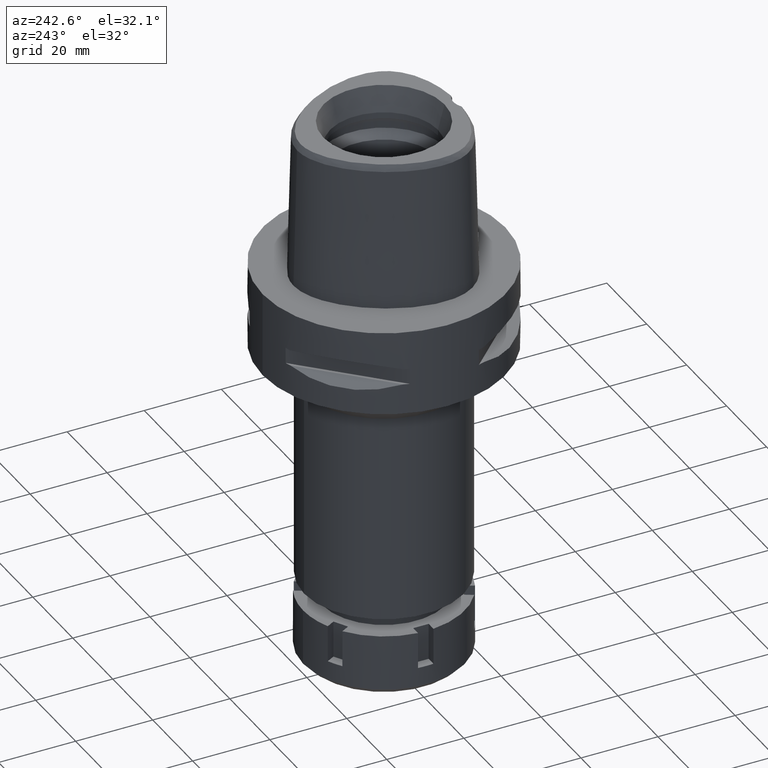
[diagram: clean part render]
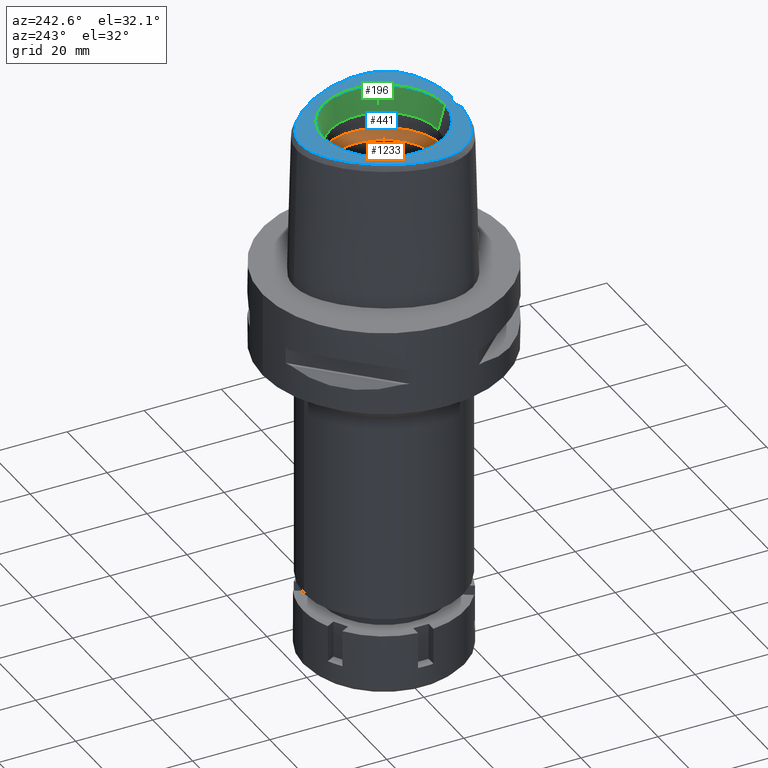
[diagram: same view with three faces highlighted in distinct colors, each labeled with its STEP entity id]
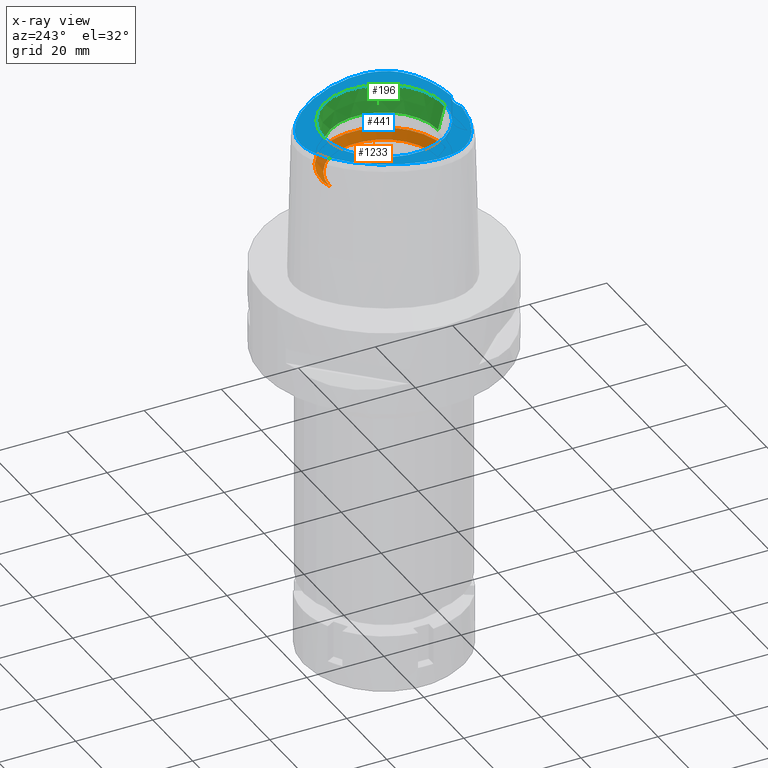
[diagram: x-ray of the same camera — body ghosted, the three highlighted faces saturated]
A machine part, auxiliary view with three faces highlighted in distinct colors.
The next image is the same camera in x-ray (body ghosted, the three faces saturated) — at least one of them is partly hidden behind the body in this view.
Their STEP definitions:

[orange] entity #1233 — the highlighted conical surface has half-angle 45 deg.
#75 = ORIENTED_EDGE ( 'NONE', *, *, #4609, .F. ) ;
#268 = ORIENTED_EDGE ( 'NONE', *, *, #4821, .T. ) ;
#439 = CARTESIAN_POINT ( 'NONE',  ( 0.0000000000000000000, 0.0000000000000000000, 25.19999999999999929 ) ) ;
#618 = CARTESIAN_POINT ( 'NONE',  ( 0.0000000000000000000, -14.00000000000000000, 24.19999999999999929 ) ) ;
#881 = AXIS2_PLACEMENT_3D ( 'NONE', #3517, #2555, #932 ) ;
#932 = DIRECTION ( 'NONE',  ( 0.0000000000000000000, -1.000000000000000000, 0.0000000000000000000 ) ) ;
#942 = FACE_OUTER_BOUND ( 'NONE', #5527, .T. ) ;
#978 = DIRECTION ( 'NONE',  ( 0.0000000000000000000, 0.0000000000000000000, 1.000000000000000000 ) ) ;
#997 = EDGE_CURVE ( 'NONE', #1745, #4759, #2680, .T. ) ;
#1153 = CONICAL_SURFACE ( 'NONE', #1249, 15.00000000000000000, 0.7853981633972997312 ) ;
#1233 = ADVANCED_FACE ( 'NONE', ( #942 ), #1153, .F. ) ;
#1243 = CARTESIAN_POINT ( 'NONE',  ( 0.0000000000000000000, 0.0000000000000000000, 26.20000000000000284 ) ) ;
#1249 = AXIS2_PLACEMENT_3D ( 'NONE', #439, #978, #5550 ) ;
#1510 = EDGE_CURVE ( 'NONE', #4928, #1745, #3617, .T. ) ;
#1578 = CARTESIAN_POINT ( 'NONE',  ( 0.0000000000000000000, 16.00000000000000000, 26.20000000000000284 ) ) ;
#1745 = VERTEX_POINT ( 'NONE', #1578 ) ;
#1789 = CIRCLE ( 'NONE', #881, 14.00000000000000000 ) ;
#1893 = VERTEX_POINT ( 'NONE', #4742 ) ;
#2233 = VECTOR ( 'NONE', #3699, 1000.000000000000114 ) ;
#2358 = ORIENTED_EDGE ( 'NONE', *, *, #1510, .F. ) ;
#2555 = DIRECTION ( 'NONE',  ( 0.0000000000000000000, 0.0000000000000000000, 1.000000000000000000 ) ) ;
#2680 = CIRCLE ( 'NONE', #3223, 16.00000000000000000 ) ;
#3223 = AXIS2_PLACEMENT_3D ( 'NONE', #1243, #3732, #5024 ) ;
#3517 = CARTESIAN_POINT ( 'NONE',  ( 0.0000000000000000000, 0.0000000000000000000, 24.19999999999999929 ) ) ;
#3601 = VECTOR ( 'NONE', #4067, 1000.000000000000114 ) ;
#3617 = LINE ( 'NONE', #4080, #2233 ) ;
#3682 = CARTESIAN_POINT ( 'NONE',  ( 0.0000000000000000000, -16.00000000000000000, 26.20000000000000284 ) ) ;
#3699 = DIRECTION ( 'NONE',  ( 0.0000000000000000000, 0.7071067811865474617, 0.7071067811865474617 ) ) ;
#3732 = DIRECTION ( 'NONE',  ( 0.0000000000000000000, 0.0000000000000000000, -1.000000000000000000 ) ) ;
#4067 = DIRECTION ( 'NONE',  ( 0.0000000000000000000, -0.7071067811865474617, 0.7071067811865474617 ) ) ;
#4080 = CARTESIAN_POINT ( 'NONE',  ( 0.0000000000000000000, 14.00000000000000000, 24.19999999999999929 ) ) ;
#4136 = ORIENTED_EDGE ( 'NONE', *, *, #997, .F. ) ;
#4422 = LINE ( 'NONE', #618, #3601 ) ;
#4609 = EDGE_CURVE ( 'NONE', #1893, #4928, #1789, .T. ) ;
#4742 = CARTESIAN_POINT ( 'NONE',  ( 0.0000000000000000000, -14.00000000000000000, 24.19999999999999929 ) ) ;
#4759 = VERTEX_POINT ( 'NONE', #3682 ) ;
#4810 = CARTESIAN_POINT ( 'NONE',  ( 0.0000000000000000000, 14.00000000000000000, 24.19999999999999929 ) ) ;
#4821 = EDGE_CURVE ( 'NONE', #1893, #4759, #4422, .T. ) ;
#4928 = VERTEX_POINT ( 'NONE', #4810 ) ;
#5024 = DIRECTION ( 'NONE',  ( 0.0000000000000000000, 1.000000000000000000, 0.0000000000000000000 ) ) ;
#5527 = EDGE_LOOP ( 'NONE', ( #4136, #2358, #75, #268 ) ) ;
#5550 = DIRECTION ( 'NONE',  ( 0.0000000000000000000, 1.000000000000000000, 0.0000000000000000000 ) ) ;

[blue] entity #441 — the highlighted planar face has unit normal (0, 0, 1).
#9 = CARTESIAN_POINT ( 'NONE',  ( 14.34383722811621631, 12.54786717290375186, 37.99999999999499067 ) ) ;
#34 = CARTESIAN_POINT ( 'NONE',  ( 16.36283630828052438, -13.76236604535423425, 37.99999999999782574 ) ) ;
#82 = EDGE_CURVE ( 'NONE', #1545, #4772, #1600, .T. ) ;
#170 = CARTESIAN_POINT ( 'NONE',  ( -8.930096025510538382, -17.65000298921755117, 38.00000000000160583 ) ) ;
#290 = CARTESIAN_POINT ( 'NONE',  ( -4.706994425064133125, -18.56721852572247755, 38.00000000000225242 ) ) ;
#307 = VERTEX_POINT ( 'NONE', #4021 ) ;
#317 = CARTESIAN_POINT ( 'NONE',  ( -20.15090095364848821, -7.024227649787176730, 38.00000000000503064 ) ) ;
#335 = EDGE_LOOP ( 'NONE', ( #5242, #2039, #965 ) ) ;
#346 = CARTESIAN_POINT ( 'NONE',  ( -0.6498990081534655738, 21.67378274708105579, 37.99999999999462119 ) ) ;
#389 = CARTESIAN_POINT ( 'NONE',  ( 17.91165267839251385, -12.13575389397420956, 38.00000000000248690 ) ) ;
#397 = CARTESIAN_POINT ( 'NONE',  ( -2.017025177696580407, 21.50280829367656210, 37.99999999999843681 ) ) ;
#411 = CARTESIAN_POINT ( 'NONE',  ( 0.0000000000000000000, 0.0000000000000000000, 38.00000000000000000 ) ) ;
#419 = CARTESIAN_POINT ( 'NONE',  ( 0.2185816947241066288, 21.68728795389817421, 38.00000000000032685 ) ) ;
#441 = ADVANCED_FACE ( 'NONE', ( #2026, #2471 ), #3691, .T. ) ;
#451 = CARTESIAN_POINT ( 'NONE',  ( 5.894487344450387134, 20.13186406532343753, 37.99999999999565148 ) ) ;
#471 = CARTESIAN_POINT ( 'NONE',  ( 19.98468477322980874, -7.807876343103409944, 37.99999999999823785 ) ) ;
#496 = CARTESIAN_POINT ( 'NONE',  ( 2.018320379028144096, 21.50256508435978731, 37.99999999999518252 ) ) ;
#505 = CARTESIAN_POINT ( 'NONE',  ( -19.28591707036719072, -9.869682450886196889, 37.99999999999479172 ) ) ;
#580 = VERTEX_POINT ( 'NONE', #949 ) ;
#647 = CARTESIAN_POINT ( 'NONE',  ( -2.682279906006999948, -18.78035848609999903, 38.00000000000000000 ) ) ;
#752 = B_SPLINE_CURVE_WITH_KNOTS ( 'NONE', 3,
 ( #3395, #419, #5532, #2973, #496, #1756, #3823, #3845, #2128, #451, #3482, #2658, #2634, #5505, #1677, #3428, #906, #3054, #9, #5085, #1333, #5160, #4365, #2999, #4706, #4764, #2186, #5114, #4687, #1704, #4345, #4788, #3902, #825, #4266, #471, #1731, #2209, #4731, #2553, #844, #3926, #389, #3027, #2577, #34, #1284, #4290, #3456, #1782, #2159, #1309, #3515, #5195, #3878, #1362, #3083, #5561, #930, #5140 ),
 .UNSPECIFIED., .F., .F.,
 ( 4, 1, 1, 1, 1, 1, 1, 1, 1, 1, 1, 1, 1, 1, 1, 1, 1, 1, 1, 1, 1, 1, 1, 1, 1, 1, 1, 1, 1, 1, 1, 1, 1, 1, 1, 1, 1, 1, 1, 1, 1, 1, 1, 1, 1, 1, 1, 1, 1, 1, 1, 1, 1, 1, 1, 1, 1, 4 ),
 ( 0.0000000000000000000, 0.01775854187129999318, 0.03551708374169992855, 0.05327562561200005486, 0.07103416748239999023, 0.08879270935270000553, 0.1065512512231000519, 0.1243097930933999562, 0.1420683349638000026, 0.1598268768341000179, 0.1775854187044000332, 0.1953439605747999686, 0.2131025024450999839, 0.2308610443155000302, 0.2486195861857999345, 0.2663781280563000120, 0.2841366699266000273, 0.3018952117970000737, 0.3196537536672999780, 0.3374122955377000244, 0.3551708374080000397, 0.3729293792782999439, 0.3906879211486999903, 0.4084464630190000056, 0.4262050048894000520, 0.4439635467596999563, 0.4617220886301000027, 0.4794806305004000180, 0.4972391723707999533, 0.5149977142410999686, 0.5327562561113999839, 0.5505147979818000303, 0.5682733398521000456, 0.5860318817224999810, 0.6037904235927999963, 0.6215489654632000427, 0.6393075073334999470, 0.6570660492038999934, 0.6748245910742000087, 0.6925831329445000240, 0.7103416748149000703, 0.7281002166851999746, 0.7458587585556000210, 0.7636173004259000363, 0.7813758422962999717, 0.7991343841665999870, 0.8168929260370000334, 0.8346514679073000487, 0.8524100097776999840, 0.8701685516479999993, 0.8879270935183000146, 0.9056856353886799660, 0.9234441772589799813, 0.9412027191293600437, 0.9589612609997000270, 0.9767198028700500023, 0.9944783447403919840, 1.000000000000000000 ),
 .UNSPECIFIED. ) ;
#756 = CARTESIAN_POINT ( 'NONE',  ( -19.64434054693323972, 1.520253387635460474, 37.99999999999695888 ) ) ;
#779 = CARTESIAN_POINT ( 'NONE',  ( -3.481017203588989695, 21.13509756881703083, 38.00000000000036948 ) ) ;
#811 = CARTESIAN_POINT ( 'NONE',  ( -0.2181979014508494408, 21.68728795389095154, 37.99999999999499778 ) ) ;
#825 = CARTESIAN_POINT ( 'NONE',  ( 20.27923816685849800, -6.179850483267850692, 38.00000000000648015 ) ) ;
#831 = CARTESIAN_POINT ( 'NONE',  ( -12.37132652997748572, -16.34104299088226142, 38.00000000000150635 ) ) ;
#844 = CARTESIAN_POINT ( 'NONE',  ( 18.67722910597929697, -11.03372143227861280, 38.00000000000058265 ) ) ;
#856 = CARTESIAN_POINT ( 'NONE',  ( -20.36398648679625722, -5.278470727085149861, 38.00000000000147082 ) ) ;
#906 = CARTESIAN_POINT ( 'NONE',  ( 12.44125753246570909, 14.89118158853759155, 38.00000000000146372 ) ) ;
#930 = CARTESIAN_POINT ( 'NONE',  ( 2.845098933833369426, -18.76733062685692843, 37.99999999999875655 ) ) ;
#949 = CARTESIAN_POINT ( 'NONE',  ( -3.470663397237000043E-11, 21.68728795390000030, 38.00000000000000000 ) ) ;
#965 = ORIENTED_EDGE ( 'NONE', *, *, #82, .F. ) ;
#1057 = CIRCLE ( 'NONE', #5447, 15.71487483155999776 ) ;
#1145 = AXIS2_PLACEMENT_3D ( 'NONE', #411, #2897, #3319 ) ;
#1183 = CARTESIAN_POINT ( 'NONE',  ( -20.30498420086619404, -2.177378896258108210, 38.00000000000602540 ) ) ;
#1208 = CARTESIAN_POINT ( 'NONE',  ( -19.78262210840479085, -8.543146992552316021, 38.00000000000574829 ) ) ;
#1235 = CARTESIAN_POINT ( 'NONE',  ( -15.71788912669596527, -14.29843101565650798, 37.99999999999530331 ) ) ;
#1267 = CARTESIAN_POINT ( 'NONE',  ( -15.24692477332513185, 11.25717358966068105, 38.00000000000471800 ) ) ;
#1277 = EDGE_CURVE ( 'NONE', #307, #4342, #1057, .T. ) ;
#1284 = CARTESIAN_POINT ( 'NONE',  ( 15.72078707640701545, -14.29615620309345125, 38.00000000000010658 ) ) ;
#1298 = CARTESIAN_POINT ( 'NONE',  ( 0.0000000000000000000, 0.0000000000000000000, 38.00000000000000000 ) ) ;
#1309 = CARTESIAN_POINT ( 'NONE',  ( 11.32341394162891213, -16.80569392800508766, 37.99999999999558753 ) ) ;
#1333 = CARTESIAN_POINT ( 'NONE',  ( 16.09765529146514496, 9.909410920131451306, 37.99999999999199218 ) ) ;
#1362 = CARTESIAN_POINT ( 'NONE',  ( 6.196495988003249522, -18.31673538864776063, 38.00000000000097344 ) ) ;
#1405 = DIRECTION ( 'NONE',  ( 0.0000000000000000000, 0.0000000000000000000, 1.000000000000000000 ) ) ;
#1545 = VERTEX_POINT ( 'NONE', #2814 ) ;
#1600 = CIRCLE ( 'NONE', #5161, 5.000000000000000888 ) ;
#1607 = CARTESIAN_POINT ( 'NONE',  ( -20.38301517462483758, -3.278344853327663344, 38.00000000000067502 ) ) ;
#1638 = CARTESIAN_POINT ( 'NONE',  ( -17.60426951086681413, 7.098774535281042297, 38.00000000000002842 ) ) ;
#1662 = CARTESIAN_POINT ( 'NONE',  ( -20.40060226222913542, -4.311417605381127061, 38.00000000000714806 ) ) ;
#1677 = CARTESIAN_POINT ( 'NONE',  ( 10.48999540691164611, 16.86597469870070043, 37.99999999999918288 ) ) ;
#1704 = CARTESIAN_POINT ( 'NONE',  ( 20.30478359881294281, -2.175347700950774232, 37.99999999999825206 ) ) ;
#1731 = CARTESIAN_POINT ( 'NONE',  ( 19.78323211892977085, -8.541156231035737179, 37.99999999999450040 ) ) ;
#1756 = CARTESIAN_POINT ( 'NONE',  ( 2.736932690726576745, 21.34527940057325068, 38.00000000000098055 ) ) ;
#1782 = CARTESIAN_POINT ( 'NONE',  ( 13.33890749495518513, -15.84912955619767416, 37.99999999999948841 ) ) ;
#1828 = DIRECTION ( 'NONE',  ( 0.0000000000000000000, -1.000000000000000000, 0.0000000000000000000 ) ) ;
#1847 = CARTESIAN_POINT ( 'NONE',  ( 0.0000000000000000000, 0.0000000000000000000, 38.00000000000000000 ) ) ;
#2026 = FACE_OUTER_BOUND ( 'NONE', #335, .T. ) ;
#2032 = CARTESIAN_POINT ( 'NONE',  ( -6.188376196366234261, -18.31830638231475561, 38.00000000000022027 ) ) ;
#2039 = ORIENTED_EDGE ( 'NONE', *, *, #3090, .F. ) ;
#2059 = CARTESIAN_POINT ( 'NONE',  ( -8.578220530113341624, 18.44656747109238992, 38.00000000000355271 ) ) ;
#2088 = CARTESIAN_POINT ( 'NONE',  ( -14.34402387965517534, 12.54761970512867286, 37.99999999999980105 ) ) ;
#2113 = CARTESIAN_POINT ( 'NONE',  ( -16.09805956313374864, 9.908742513516868300, 38.00000000000630962 ) ) ;
#2128 = CARTESIAN_POINT ( 'NONE',  ( 5.059249257020304924, 20.53399274679572883, 37.99999999999438671 ) ) ;
#2159 = CARTESIAN_POINT ( 'NONE',  ( 12.37622418509453048, -16.33871033285954155, 37.99999999999644729 ) ) ;
#2186 = CARTESIAN_POINT ( 'NONE',  ( 19.64387775267999459, 1.522048414458225141, 37.99999999999992184 ) ) ;
#2209 = CARTESIAN_POINT ( 'NONE',  ( 19.54993126781906909, -9.226212439885376426, 38.00000000000051870 ) ) ;
#2231 = CIRCLE ( 'NONE', #4472, 15.71487483155999776 ) ;
#2244 = CARTESIAN_POINT ( 'NONE',  ( -13.40435640711567444, 13.76268382997401396, 37.99999999999465672 ) ) ;
#2340 = CARTESIAN_POINT ( 'NONE',  ( -3.522896839653774315, -18.70811514173104939, 38.00000000000355271 ) ) ;
#2452 = CARTESIAN_POINT ( 'NONE',  ( -2.682279906006999948, -18.78035848609999903, 38.00000000000000000 ) ) ;
#2465 = ORIENTED_EDGE ( 'NONE', *, *, #1277, .F. ) ;
#2471 = FACE_BOUND ( 'NONE', #5485, .T. ) ;
#2477 = CARTESIAN_POINT ( 'NONE',  ( -11.46564124494570613, 15.92741340513640580, 37.99999999999972999 ) ) ;
#2506 = CARTESIAN_POINT ( 'NONE',  ( -2.735698246183015048, 21.34559102902644057, 38.00000000000260059 ) ) ;
#2539 = CARTESIAN_POINT ( 'NONE',  ( -3.470663397237000043E-11, 21.68728795390000030, 38.00000000000000000 ) ) ;
#2553 = CARTESIAN_POINT ( 'NONE',  ( 18.99619228226586998, -10.46780014453669061, 37.99999999999445777 ) ) ;
#2563 = CARTESIAN_POINT ( 'NONE',  ( -5.058220461389300482, 20.53445508814699139, 38.00000000000193978 ) ) ;
#2577 = CARTESIAN_POINT ( 'NONE',  ( 16.93855157777872478, -13.22377441789236485, 37.99999999999804601 ) ) ;
#2634 = CARTESIAN_POINT ( 'NONE',  ( 8.578848111816569144, 18.44609846599186653, 37.99999999999742784 ) ) ;
#2658 = CARTESIAN_POINT ( 'NONE',  ( 7.655962789343106145, 19.09402979099325037, 37.99999999999913314 ) ) ;
#2814 = CARTESIAN_POINT ( 'NONE',  ( 2.682287482605000051, -18.78036330228999873, 38.00000000000000000 ) ) ;
#2897 = DIRECTION ( 'NONE',  ( 0.0000000000000000000, 0.0000000000000000000, 1.000000000000000000 ) ) ;
#2902 = CARTESIAN_POINT ( 'NONE',  ( -18.24302769442001448, 5.671232572957698004, 37.99999999999921840 ) ) ;
#2927 = CARTESIAN_POINT ( 'NONE',  ( -19.98419490692120704, -7.809898894995577656, 38.00000000000395062 ) ) ;
#2954 = CARTESIAN_POINT ( 'NONE',  ( -12.44116897271390521, 14.89128547409819170, 37.99999999999827338 ) ) ;
#2973 = CARTESIAN_POINT ( 'NONE',  ( 1.325020189552755134, 21.61081414408949186, 38.00000000000041211 ) ) ;
#2984 = CARTESIAN_POINT ( 'NONE',  ( -10.48962422759634094, 16.86631853279093463, 38.00000000000689226 ) ) ;
#2999 = CARTESIAN_POINT ( 'NONE',  ( 18.24247239569373846, 5.672548708072092438, 37.99999999999658229 ) ) ;
#3010 = CARTESIAN_POINT ( 'NONE',  ( -14.21001600787632668, -15.34519100085704757, 37.99999999999663913 ) ) ;
#3027 = CARTESIAN_POINT ( 'NONE',  ( 17.45306278053327276, -12.68156296993346821, 38.00000000000289191 ) ) ;
#3054 = CARTESIAN_POINT ( 'NONE',  ( 13.40430406168875699, 13.76274261013035449, 38.00000000000322586 ) ) ;
#3083 = CARTESIAN_POINT ( 'NONE',  ( 4.715576077242224606, -18.56597918134918501, 37.99999999999565148 ) ) ;
#3090 = EDGE_CURVE ( 'NONE', #4772, #580, #3454, .T. ) ;
#3305 = CARTESIAN_POINT ( 'NONE',  ( 0.0000000000000000000, -23.00000000000000000, 38.00000000000000000 ) ) ;
#3319 = DIRECTION ( 'NONE',  ( 1.000000000000000000, 0.0000000000000000000, 0.0000000000000000000 ) ) ;
#3327 = CARTESIAN_POINT ( 'NONE',  ( -18.31748213707045636, -11.58791794387357754, 37.99999999999749889 ) ) ;
#3354 = CARTESIAN_POINT ( 'NONE',  ( -19.94188961899601509, 0.2242544969875550076, 38.00000000000718359 ) ) ;
#3379 = CARTESIAN_POINT ( 'NONE',  ( -20.16012968311774500, -1.009698174524371383, 38.00000000000088107 ) ) ;
#3395 = CARTESIAN_POINT ( 'NONE',  ( -3.470663397237000043E-11, 21.68728795390000030, 38.00000000000000000 ) ) ;
#3408 = CARTESIAN_POINT ( 'NONE',  ( -15.00295592773809261, -14.82617991125721879, 37.99999999999992184 ) ) ;
#3428 = CARTESIAN_POINT ( 'NONE',  ( 11.46587147800191886, 15.92717600803210765, 38.00000000000034817 ) ) ;
#3454 = B_SPLINE_CURVE_WITH_KNOTS ( 'NONE', 3,
 ( #2452, #4169, #2340, #290, #2032, #4053, #170, #3643, #4193, #831, #4223, #3010, #3408, #1235, #4694, #4613, #4250, #3962, #3327, #5043, #5492, #505, #4305, #1208, #2927, #317, #3809, #856, #1662, #1607, #1183, #3379, #3354, #756, #5018, #5098, #2902, #1638, #5469, #2113, #1267, #2088, #2244, #2954, #2477, #2984, #5068, #2059, #4275, #4667, #3780, #2563, #4638, #779, #2506, #397, #5514, #346, #811, #2539 ),
 .UNSPECIFIED., .F., .F.,
 ( 4, 1, 1, 1, 1, 1, 1, 1, 1, 1, 1, 1, 1, 1, 1, 1, 1, 1, 1, 1, 1, 1, 1, 1, 1, 1, 1, 1, 1, 1, 1, 1, 1, 1, 1, 1, 1, 1, 1, 1, 1, 1, 1, 1, 1, 1, 1, 1, 1, 1, 1, 1, 1, 1, 1, 1, 1, 4 ),
 ( 0.0000000000000000000, 0.005420919554200098744, 0.02318126027639999531, 0.04094160099879995407, 0.05870194172099996166, 0.07646228244330000035, 0.09422262316550000794, 0.1119829638877999356, 0.1297433046099999432, 0.1475036453321999508, 0.1652639860544999895, 0.1830243267768000281, 0.2007846674991000668, 0.2185450082212999634, 0.2363053489436000021, 0.2540656896658000097, 0.2718260303881000484, 0.2895863711103000560, 0.3073467118325999836, 0.3251070525547999912, 0.3428673932771000299, 0.3606277339994000686, 0.3783880747216000762, 0.3961484154438998928, 0.4139087561661000114, 0.4316690968884000501, 0.4494294376106000577, 0.4671897783328999854, 0.4849501190552000240, 0.5027104597774000316, 0.5204708004996999593, 0.5382311412219000779, 0.5559914819442000056, 0.5737518226664000132, 0.5915121633886999408, 0.6092725041108999484, 0.6270328448331999871, 0.6447931855555000258, 0.6625535262777000334, 0.6803138669999999610, 0.6980742077221999686, 0.7158345484445000073, 0.7335948891667000149, 0.7513552298890000536, 0.7691155706112000612, 0.7868759113336000199, 0.8046362520558000275, 0.8223965927780999552, 0.8401569335002999628, 0.8579172742224999704, 0.8756776149448000091, 0.8934379556670000166, 0.9111982963893099363, 0.9289586371115700070, 0.9467189778338299666, 0.9644793185560800453, 0.9822396592783400049, 1.000000000000000000 ),
 .UNSPECIFIED. ) ;
#3456 = CARTESIAN_POINT ( 'NONE',  ( 14.21382211798866990, -15.34284287400575764, 38.00000000000138556 ) ) ;
#3466 = CARTESIAN_POINT ( 'NONE',  ( 0.0000000000000000000, 15.71487483155999776, 38.00000000000000000 ) ) ;
#3482 = CARTESIAN_POINT ( 'NONE',  ( 6.760281394351055795, 19.65404668909480534, 37.99999999999227640 ) ) ;
#3487 = EDGE_CURVE ( 'NONE', #4342, #307, #2231, .T. ) ;
#3515 = CARTESIAN_POINT ( 'NONE',  ( 10.17751632997979172, -17.24426134458915172, 37.99999999999407407 ) ) ;
#3643 = CARTESIAN_POINT ( 'NONE',  ( -10.17136073855236944, -17.24644253469873334, 38.00000000000419931 ) ) ;
#3691 = PLANE ( 'NONE',  #1145 ) ;
#3780 = CARTESIAN_POINT ( 'NONE',  ( -5.893543501600780665, 20.13235399352013033, 38.00000000000671463 ) ) ;
#3790 = EDGE_CURVE ( 'NONE', #580, #1545, #752, .T. ) ;
#3809 = CARTESIAN_POINT ( 'NONE',  ( -20.27898581532433298, -6.181921586189814022, 38.00000000000209610 ) ) ;
#3823 = CARTESIAN_POINT ( 'NONE',  ( 3.482188079159811878, 21.13472718027324504, 37.99999999999899103 ) ) ;
#3845 = CARTESIAN_POINT ( 'NONE',  ( 4.255661039972256532, 20.86618068829422867, 37.99999999999789679 ) ) ;
#3878 = CARTESIAN_POINT ( 'NONE',  ( 7.606839420237840876, -18.00827588386420075, 38.00000000000088818 ) ) ;
#3902 = CARTESIAN_POINT ( 'NONE',  ( 20.36412151360978839, -5.276385427453520016, 38.00000000000137135 ) ) ;
#3926 = CARTESIAN_POINT ( 'NONE',  ( 18.31883910943097504, -11.58595831188011083, 37.99999999999744915 ) ) ;
#3962 = CARTESIAN_POINT ( 'NONE',  ( -17.91005512243686226, -12.13778127739347745, 38.00000000000078160 ) ) ;
#4021 = CARTESIAN_POINT ( 'NONE',  ( 0.0000000000000000000, -15.71487483155999776, 38.00000000000000000 ) ) ;
#4053 = CARTESIAN_POINT ( 'NONE',  ( -7.599370508970219262, -18.01010694911127530, 38.00000000000416378 ) ) ;
#4063 = DIRECTION ( 'NONE',  ( 0.0000000000000000000, 0.0000000000000000000, 1.000000000000000000 ) ) ;
#4169 = CARTESIAN_POINT ( 'NONE',  ( -2.841965291530544668, -18.76757795571883491, 37.99999999999980815 ) ) ;
#4193 = CARTESIAN_POINT ( 'NONE',  ( -11.31790883121474245, -16.80796958613082381, 38.00000000000173372 ) ) ;
#4223 = CARTESIAN_POINT ( 'NONE',  ( -13.33457781970206035, -15.85148397417591326, 38.00000000000486011 ) ) ;
#4250 = CARTESIAN_POINT ( 'NONE',  ( -17.45119705494280282, -12.68365517585401747, 38.00000000000255085 ) ) ;
#4266 = CARTESIAN_POINT ( 'NONE',  ( 20.15127154947216681, -7.022178451341024363, 38.00000000000400746 ) ) ;
#4275 = CARTESIAN_POINT ( 'NONE',  ( -7.655222869371622885, 19.09452359226458285, 37.99999999999694467 ) ) ;
#4290 = CARTESIAN_POINT ( 'NONE',  ( 15.00628712263248943, -14.82385870794814053, 37.99999999999662492 ) ) ;
#4305 = CARTESIAN_POINT ( 'NONE',  ( -19.54919922642150354, -9.228169790567800845, 38.00000000000262901 ) ) ;
#4342 = VERTEX_POINT ( 'NONE', #3466 ) ;
#4345 = CARTESIAN_POINT ( 'NONE',  ( 20.38292172607859953, -3.276278498261098182, 37.99999999999266720 ) ) ;
#4364 = ORIENTED_EDGE ( 'NONE', *, *, #3487, .F. ) ;
#4365 = CARTESIAN_POINT ( 'NONE',  ( 17.60373714028159853, 7.099883643192407945, 37.99999999999548095 ) ) ;
#4472 = AXIS2_PLACEMENT_3D ( 'NONE', #1847, #4484, #5338 ) ;
#4474 = DIRECTION ( 'NONE',  ( 0.0000000000000000000, 1.000000000000000000, 0.0000000000000000000 ) ) ;
#4484 = DIRECTION ( 'NONE',  ( 0.0000000000000000000, 0.0000000000000000000, 1.000000000000000000 ) ) ;
#4613 = CARTESIAN_POINT ( 'NONE',  ( -16.93638123745949997, -13.22593246128331224, 37.99999999999903366 ) ) ;
#4638 = CARTESIAN_POINT ( 'NONE',  ( -4.254559144977351437, 20.86660163697591486, 37.99999999999717204 ) ) ;
#4667 = CARTESIAN_POINT ( 'NONE',  ( -6.759433772717140521, 19.65454812513344152, 37.99999999999344880 ) ) ;
#4687 = CARTESIAN_POINT ( 'NONE',  ( 20.15982952132113937, -1.007721426051426672, 38.00000000000169109 ) ) ;
#4694 = CARTESIAN_POINT ( 'NONE',  ( -16.36032397153664064, -13.76458520345263103, 38.00000000000527933 ) ) ;
#4706 = CARTESIAN_POINT ( 'NONE',  ( 18.79595068776232480, 4.257753965101707117, 38.00000000000310507 ) ) ;
#4731 = CARTESIAN_POINT ( 'NONE',  ( 19.28677546797324993, -9.867757137505979159, 37.99999999999755573 ) ) ;
#4764 = CARTESIAN_POINT ( 'NONE',  ( 19.26272899268446892, 2.870227893749285997, 38.00000000000019185 ) ) ;
#4772 = VERTEX_POINT ( 'NONE', #647 ) ;
#4788 = CARTESIAN_POINT ( 'NONE',  ( 20.40062138795126501, -4.309334958867775178, 37.99999999999833022 ) ) ;
#5018 = CARTESIAN_POINT ( 'NONE',  ( -19.26324493738939125, 2.868570891456882599, 38.00000000000267164 ) ) ;
#5043 = CARTESIAN_POINT ( 'NONE',  ( -18.67608643721691664, -11.03561202290681109, 38.00000000000037659 ) ) ;
#5068 = CARTESIAN_POINT ( 'NONE',  ( -9.524337278001453910, 17.70558492631516856, 38.00000000000083844 ) ) ;
#5085 = CARTESIAN_POINT ( 'NONE',  ( 15.24661770199666933, 11.25762885478455999, 37.99999999999872813 ) ) ;
#5098 = CARTESIAN_POINT ( 'NONE',  ( -18.79649882725014010, 4.256255933890983556, 37.99999999999428724 ) ) ;
#5114 = CARTESIAN_POINT ( 'NONE',  ( 19.94150023628273516, 0.2261566111944858515, 38.00000000000032685 ) ) ;
#5140 = CARTESIAN_POINT ( 'NONE',  ( 2.682287482605000051, -18.78036330228999873, 38.00000000000000000 ) ) ;
#5160 = CARTESIAN_POINT ( 'NONE',  ( 16.88599964843437462, 8.518708218769971197, 37.99999999999945288 ) ) ;
#5161 = AXIS2_PLACEMENT_3D ( 'NONE', #3305, #4063, #4474 ) ;
#5195 = CARTESIAN_POINT ( 'NONE',  ( 8.936919536467190284, -17.64796721715137906, 37.99999999999604228 ) ) ;
#5242 = ORIENTED_EDGE ( 'NONE', *, *, #3790, .F. ) ;
#5338 = DIRECTION ( 'NONE',  ( 0.0000000000000000000, 1.000000000000000000, 0.0000000000000000000 ) ) ;
#5447 = AXIS2_PLACEMENT_3D ( 'NONE', #1298, #1405, #1828 ) ;
#5469 = CARTESIAN_POINT ( 'NONE',  ( -16.88647904405223699, 8.517821442302320634, 38.00000000000387956 ) ) ;
#5485 = EDGE_LOOP ( 'NONE', ( #2465, #4364 ) ) ;
#5492 = CARTESIAN_POINT ( 'NONE',  ( -18.99520880204055473, -10.46968343925917644, 38.00000000000446221 ) ) ;
#5505 = CARTESIAN_POINT ( 'NONE',  ( 9.524842839488144364, 17.70516372194645172, 38.00000000000247269 ) ) ;
#5514 = CARTESIAN_POINT ( 'NONE',  ( -1.323674540693887014, 21.61098849315564152, 38.00000000000522249 ) ) ;
#5532 = CARTESIAN_POINT ( 'NONE',  ( 0.6513209347955413175, 21.67370899611464452, 38.00000000000249401 ) ) ;
#5561 = CARTESIAN_POINT ( 'NONE',  ( 3.529311563348184855, -18.70747079910241695, 37.99999999999627676 ) ) ;

[green] entity #196 — the highlighted conical surface has half-angle 15 deg.
#196 = ADVANCED_FACE ( 'NONE', ( #3059 ), #5079, .F. ) ;
#307 = VERTEX_POINT ( 'NONE', #4021 ) ;
#415 = VECTOR ( 'NONE', #3892, 1000.000000000000000 ) ;
#528 = CARTESIAN_POINT ( 'NONE',  ( 0.0000000000000000000, 14.00000000000000000, 31.60000000000000142 ) ) ;
#551 = EDGE_CURVE ( 'NONE', #3345, #307, #3592, .T. ) ;
#686 = AXIS2_PLACEMENT_3D ( 'NONE', #4769, #2213, #911 ) ;
#747 = ORIENTED_EDGE ( 'NONE', *, *, #2665, .F. ) ;
#911 = DIRECTION ( 'NONE',  ( 0.0000000000000000000, 1.000000000000000000, 0.0000000000000000000 ) ) ;
#1057 = CIRCLE ( 'NONE', #5447, 15.71487483155999776 ) ;
#1277 = EDGE_CURVE ( 'NONE', #307, #4342, #1057, .T. ) ;
#1298 = CARTESIAN_POINT ( 'NONE',  ( 0.0000000000000000000, 0.0000000000000000000, 38.00000000000000000 ) ) ;
#1405 = DIRECTION ( 'NONE',  ( 0.0000000000000000000, 0.0000000000000000000, 1.000000000000000000 ) ) ;
#1458 = CARTESIAN_POINT ( 'NONE',  ( 0.0000000000000000000, 0.0000000000000000000, 31.60000000000000142 ) ) ;
#1683 = VECTOR ( 'NONE', #1862, 1000.000000000000000 ) ;
#1807 = CARTESIAN_POINT ( 'NONE',  ( 0.0000000000000000000, -14.00000000000000000, 31.60000000000000142 ) ) ;
#1828 = DIRECTION ( 'NONE',  ( 0.0000000000000000000, -1.000000000000000000, 0.0000000000000000000 ) ) ;
#1862 = DIRECTION ( 'NONE',  ( 0.0000000000000000000, -0.2588190451025869088, 0.9659258262890505486 ) ) ;
#1995 = ORIENTED_EDGE ( 'NONE', *, *, #551, .T. ) ;
#2148 = CIRCLE ( 'NONE', #2509, 14.00000000000000000 ) ;
#2213 = DIRECTION ( 'NONE',  ( 0.0000000000000000000, 0.0000000000000000000, 1.000000000000000000 ) ) ;
#2509 = AXIS2_PLACEMENT_3D ( 'NONE', #1458, #2723, #3205 ) ;
#2597 = ORIENTED_EDGE ( 'NONE', *, *, #1277, .T. ) ;
#2665 = EDGE_CURVE ( 'NONE', #3815, #4342, #5520, .T. ) ;
#2723 = DIRECTION ( 'NONE',  ( 0.0000000000000000000, 0.0000000000000000000, 1.000000000000000000 ) ) ;
#3059 = FACE_OUTER_BOUND ( 'NONE', #4027, .T. ) ;
#3205 = DIRECTION ( 'NONE',  ( 0.0000000000000000000, -1.000000000000000000, 0.0000000000000000000 ) ) ;
#3345 = VERTEX_POINT ( 'NONE', #4786 ) ;
#3406 = EDGE_CURVE ( 'NONE', #3345, #3815, #2148, .T. ) ;
#3466 = CARTESIAN_POINT ( 'NONE',  ( 0.0000000000000000000, 15.71487483155999776, 38.00000000000000000 ) ) ;
#3592 = LINE ( 'NONE', #1807, #1683 ) ;
#3815 = VERTEX_POINT ( 'NONE', #528 ) ;
#3892 = DIRECTION ( 'NONE',  ( 0.0000000000000000000, 0.2588190451025869088, 0.9659258262890505486 ) ) ;
#4021 = CARTESIAN_POINT ( 'NONE',  ( 0.0000000000000000000, -15.71487483155999776, 38.00000000000000000 ) ) ;
#4027 = EDGE_LOOP ( 'NONE', ( #747, #4730, #1995, #2597 ) ) ;
#4312 = CARTESIAN_POINT ( 'NONE',  ( 0.0000000000000000000, 14.00000000000000000, 31.60000000000000142 ) ) ;
#4342 = VERTEX_POINT ( 'NONE', #3466 ) ;
#4730 = ORIENTED_EDGE ( 'NONE', *, *, #3406, .F. ) ;
#4769 = CARTESIAN_POINT ( 'NONE',  ( 0.0000000000000000000, 0.0000000000000000000, 34.79999999999999716 ) ) ;
#4786 = CARTESIAN_POINT ( 'NONE',  ( 0.0000000000000000000, -14.00000000000000000, 31.60000000000000142 ) ) ;
#5079 = CONICAL_SURFACE ( 'NONE', #686, 14.85743741577999977, 0.2617993877991000029 ) ;
#5447 = AXIS2_PLACEMENT_3D ( 'NONE', #1298, #1405, #1828 ) ;
#5520 = LINE ( 'NONE', #4312, #415 ) ;